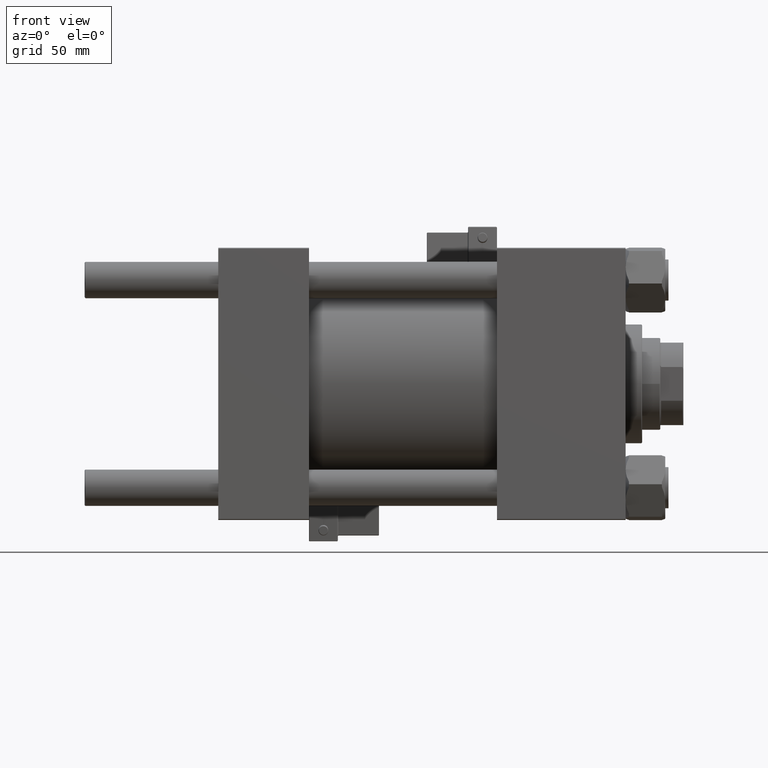
[diagram: clean part render]
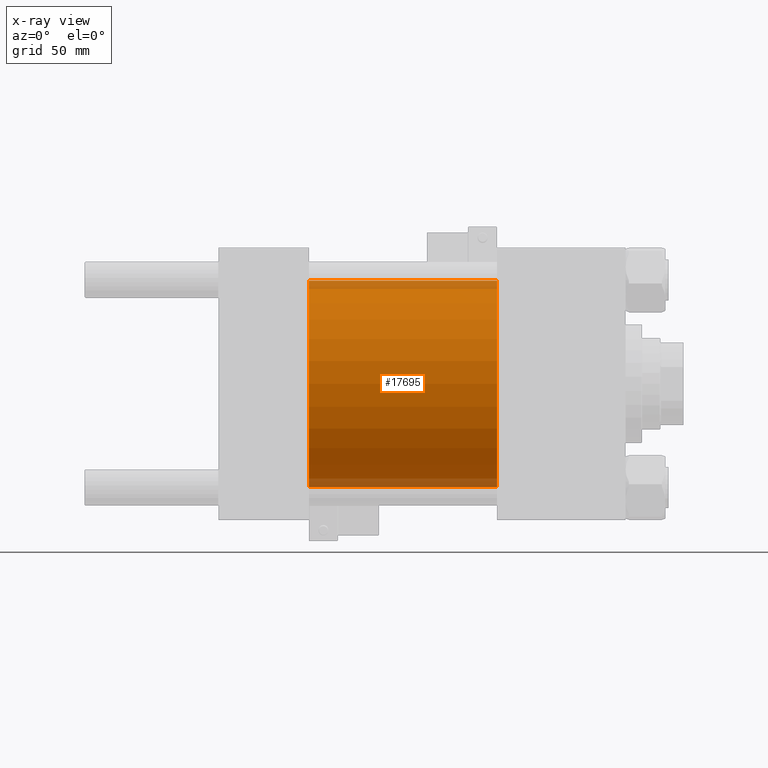
[diagram: x-ray — body ghosted, one internal face saturated and labeled with its STEP entity id]
A machine part, front view, then the same camera in x-ray: the body is ghosted and one INTERNAL B-rep face — a face not visible from any outside direction — is saturated and labeled: STEP entity #17695.
In plain terms, the highlighted cylindrical surface (partial cylindrical patch) has radius 62.5 mm, axis along (-1, -0, -0).
Its self-contained STEP definition (entity closure, byte-faithful):
#1711 = ORIENTED_EDGE ( 'NONE', *, *, #41266, .F. ) ;
#3312 = VERTEX_POINT ( 'NONE', #20345 ) ;
#3861 = ORIENTED_EDGE ( 'NONE', *, *, #43058, .T. ) ;
#7233 = DIRECTION ( 'NONE',  ( 1.000000000000000000, 0.000000000000000000, 0.000000000000000000 ) ) ;
#8031 = ORIENTED_EDGE ( 'NONE', *, *, #39532, .T. ) ;
#9543 = DIRECTION ( 'NONE',  ( -1.000000000000000000, -0.000000000000000000, -0.000000000000000000 ) ) ;
#10692 = DIRECTION ( 'NONE',  ( 0.000000000000000000, 0.000000000000000000, -1.000000000000000000 ) ) ;
#11055 = ORIENTED_EDGE ( 'NONE', *, *, #24110, .F. ) ;
#12516 = DIRECTION ( 'NONE',  ( -1.000000000000000000, -0.000000000000000000, -0.000000000000000000 ) ) ;
#12553 = FACE_OUTER_BOUND ( 'NONE', #37670, .T. ) ;
#14952 = DIRECTION ( 'NONE',  ( 0.000000000000000000, 0.000000000000000000, -1.000000000000000000 ) ) ;
#16426 = VERTEX_POINT ( 'NONE', #38004 ) ;
#16501 = LINE ( 'NONE', #37535, #21683 ) ;
#16542 = DIRECTION ( 'NONE',  ( -1.000000000000000000, -0.000000000000000000, -0.000000000000000000 ) ) ;
#17266 = LINE ( 'NONE', #21271, #27310 ) ;
#17695 = ADVANCED_FACE ( 'NONE', ( #12553 ), #48245, .F. ) ;
#20345 = CARTESIAN_POINT ( 'NONE',  ( 55.00000000000000000, 7.654042494670956226E-15, -62.50000000000000000 ) ) ;
#20404 = AXIS2_PLACEMENT_3D ( 'NONE', #51439, #7233, #14952 ) ;
#20957 = CARTESIAN_POINT ( 'NONE',  ( 55.00000000000000000, 0.000000000000000000, 62.50000000000000000 ) ) ;
#21271 = CARTESIAN_POINT ( 'NONE',  ( 169.0000000000000000, 7.654042494670956226E-15, -62.50000000000000000 ) ) ;
#21683 = VECTOR ( 'NONE', #12516, 1000.000000000000000 ) ;
#23024 = AXIS2_PLACEMENT_3D ( 'NONE', #38917, #47966, #10692 ) ;
#24110 = EDGE_CURVE ( 'NONE', #16426, #46505, #16501, .T. ) ;
#27310 = VECTOR ( 'NONE', #9543, 1000.000000000000000 ) ;
#32406 = CIRCLE ( 'NONE', #23024, 62.50000000000000000 ) ;
#37535 = CARTESIAN_POINT ( 'NONE',  ( 169.0000000000000000, 0.000000000000000000, 62.50000000000000000 ) ) ;
#37670 = EDGE_LOOP ( 'NONE', ( #8031, #3861, #1711, #11055 ) ) ;
#38004 = CARTESIAN_POINT ( 'NONE',  ( 169.0000000000000000, 0.000000000000000000, 62.50000000000000000 ) ) ;
#38917 = CARTESIAN_POINT ( 'NONE',  ( 55.00000000000000000, 0.000000000000000000, 0.000000000000000000 ) ) ;
#39532 = EDGE_CURVE ( 'NONE', #16426, #45913, #46778, .T. ) ;
#40204 = CARTESIAN_POINT ( 'NONE',  ( 169.0000000000000000, 7.654042494670956226E-15, -62.50000000000000000 ) ) ;
#41266 = EDGE_CURVE ( 'NONE', #46505, #3312, #32406, .T. ) ;
#43058 = EDGE_CURVE ( 'NONE', #45913, #3312, #17266, .T. ) ;
#45054 = CARTESIAN_POINT ( 'NONE',  ( 169.0000000000000000, 0.000000000000000000, 0.000000000000000000 ) ) ;
#45913 = VERTEX_POINT ( 'NONE', #40204 ) ;
#46505 = VERTEX_POINT ( 'NONE', #20957 ) ;
#46778 = CIRCLE ( 'NONE', #20404, 62.50000000000000000 ) ;
#47966 = DIRECTION ( 'NONE',  ( 1.000000000000000000, 0.000000000000000000, 0.000000000000000000 ) ) ;
#48245 = CYLINDRICAL_SURFACE ( 'NONE', #52204, 62.50000000000000000 ) ;
#48507 = DIRECTION ( 'NONE',  ( 0.000000000000000000, 0.000000000000000000, 1.000000000000000000 ) ) ;
#51439 = CARTESIAN_POINT ( 'NONE',  ( 169.0000000000000000, 0.000000000000000000, 0.000000000000000000 ) ) ;
#52204 = AXIS2_PLACEMENT_3D ( 'NONE', #45054, #16542, #48507 ) ;